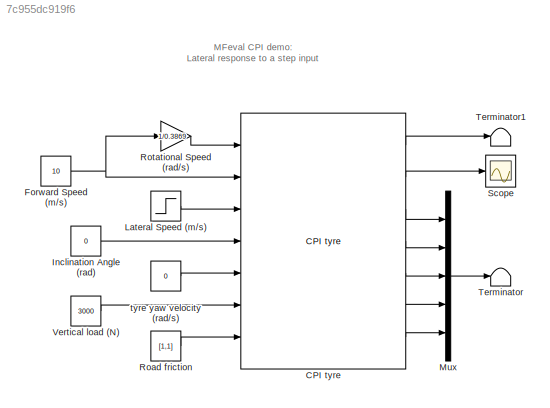
MODEL slx_7c955dc919f6
KIND model
CONFIG AbsTol = auto
CONFIG EnableMultiTasking = off
CONFIG FixedStep = 0.00025
CONFIG MaxStep = auto
CONFIG MinStep = auto
CONFIG RelTol = 1e-3
CONFIG SampleTimeConstraint = Unconstrained
CONFIG SolverName = FixedStepAuto
CONFIG StartTime = 0.0
CONFIG StopTime = 2
BLOCK [Reference] CPI tyre  REF=mfeval_LIB/CPI tyre
  Description = Magic Formula 6.1.2 tyre model including relaxation length and transient calculations
  Ports = [7, 7]
  SourceBlock = mfeval_LIB/CPI tyre
  SourceProductName = MFeval Library
  SourceType = mfeval_CPI_tyre
BLOCK [Constant] Forward Speed (m//s)
  Value = 10
BLOCK [Constant] Inclination Angle (rad)
  Value = 0
BLOCK [Step] Lateral Speed (m//s)
  SampleTime = 0
BLOCK [Mux] Mux
  DisplayOption = bar
  Inputs = 5
  Ports = [5, 1]
BLOCK [Constant] Road friction
  Value = [1,1]
BLOCK [Gain] Rotational Speed (rad//s)
  Gain = 1/0.3869
BLOCK [Scope] Scope
  Floating = off
  NumInputPorts = 1
  Ports = [1]
  ScopeSpecificationString = Simulink.scopes.TimeScopeBlockCfg('CurrentConfiguration', extmgr.ConfigurationSet(extmgr.Configuration('Core','General UI',true),extmgr.Configuration('Core','Source UI',true),extmgr.Configuration('Sources','WiredSimulink',true),extmgr.Configuration('Visuals','Time Domain',true,'SerializedDisplays',{struct('MinYLimReal','-3639.8016','MaxYLimReal','470.58715','YLabelReal','','MinYLimMag','  0.00000'...<+1384ch>
BLOCK [Terminator] Terminator
BLOCK [Terminator] Terminator1
BLOCK [Constant] Vertical load (N)
  Value = 3000
BLOCK [Constant] tyre yaw velocity (rad//s)
  Value = 0
ANNOTATION (root): MFeval CPI demo : Lateral response to a step input
LINE CPI tyre:1 -> Terminator1:1
LINE CPI tyre:2 -> Scope:1
LINE CPI tyre:3 -> Mux:1
LINE CPI tyre:4 -> Mux:2
LINE CPI tyre:5 -> Mux:3
LINE CPI tyre:6 -> Mux:4
LINE CPI tyre:7 -> Mux:5
NET Forward Speed (m//s):1 -> CPI tyre:2, Rotational Speed (rad//s):1
LINE Inclination Angle (rad):1 -> CPI tyre:4
LINE Lateral Speed (m//s):1 -> CPI tyre:3
LINE Mux:1 -> Terminator:1
LINE Road friction:1 -> CPI tyre:7
LINE Rotational Speed (rad//s):1 -> CPI tyre:1
LINE Vertical load (N):1 -> CPI tyre:6
LINE tyre yaw velocity (rad//s):1 -> CPI tyre:5
note: NET lines group one-source signal fan-out (src -> all destinations, sorted); 1:1 wires keep LINE
